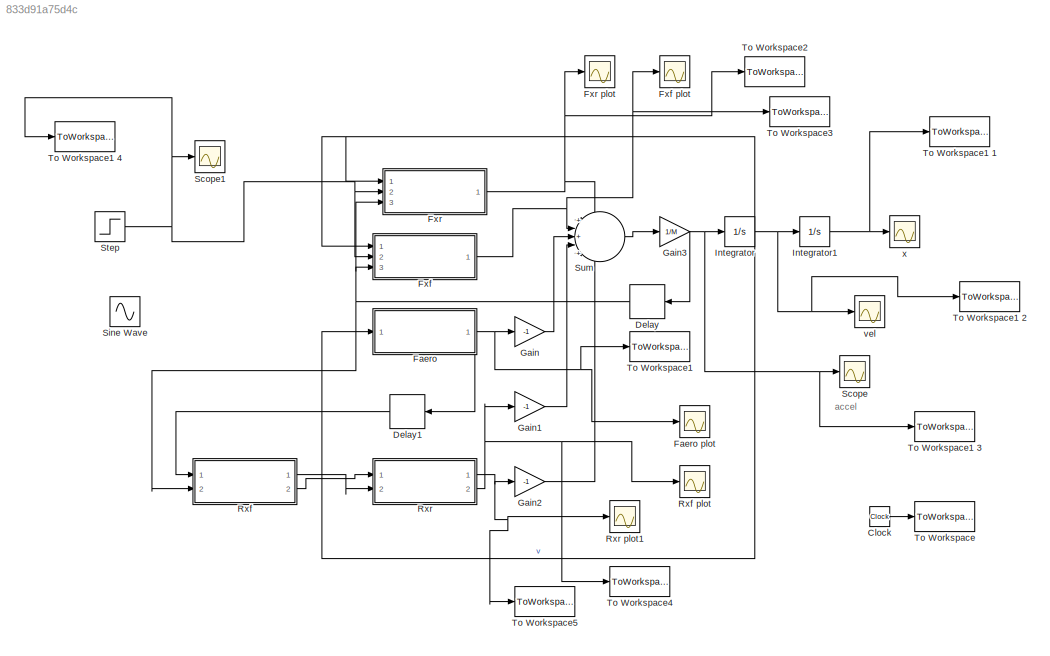
MODEL slx_833d91a75d4c
KIND model
CONFIG AbsTol = auto
CONFIG EnableMultiTasking = off
CONFIG FixedStep = 1e-2
CONFIG MaxStep = auto
CONFIG MinStep = auto
CONFIG RelTol = 1e-3
CONFIG SampleTimeConstraint = Unconstrained
CONFIG SolverName = FixedStepAuto
CONFIG StartTime = 0
CONFIG StopTime = 11.0
BLOCK [Clock] Clock
BLOCK [Delay] Delay
  DelayLength = 1
  InitialCondition = 0
  InputPortMap = u0
  NameLocation = top
  Ports = [1, 1]
BLOCK [Delay] Delay1
  DelayLength = 1
  InitialCondition = 0
  InputPortMap = u0
  NameLocation = top
  Ports = [1, 1]
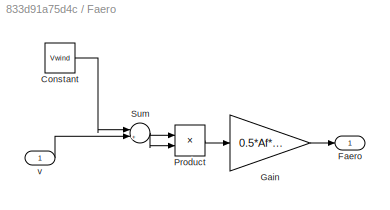
BLOCK [SubSystem] Faero
  Ports = [1, 1]
  RequestExecContextInheritance = off
BLOCK [Scope] Faero plot
  Floating = off
  NumInputPorts = 1
  Ports = [1]
  ScopeSpecificationString = Simulink.scopes.TimeScopeBlockCfg('CurrentConfiguration', extmgr.ConfigurationSet(extmgr.Configuration('Core','General UI',true),extmgr.Configuration('Core','Source UI',true),extmgr.Configuration('Sources','WiredSimulink',true,'DataLoggingVariableName','ScopeData2'),extmgr.Configuration('Visuals','Time Domain',true,'SerializedDisplays',{struct('MinYLimReal','-2454.48712','MaxYLimReal','22177.00903...<+1419ch>
BLOCK [Constant] Faero/Constant
  Value = Vwind
BLOCK [Outport] Faero/Faero
BLOCK [Gain] Faero/Gain
  Gain = 0.5*Af*rho*Cd
BLOCK [Product] Faero/Product
  Ports = [2, 1]
BLOCK [Sum] Faero/Sum
  Inputs = |++
  Ports = [2, 1]
BLOCK [Inport] Faero/v
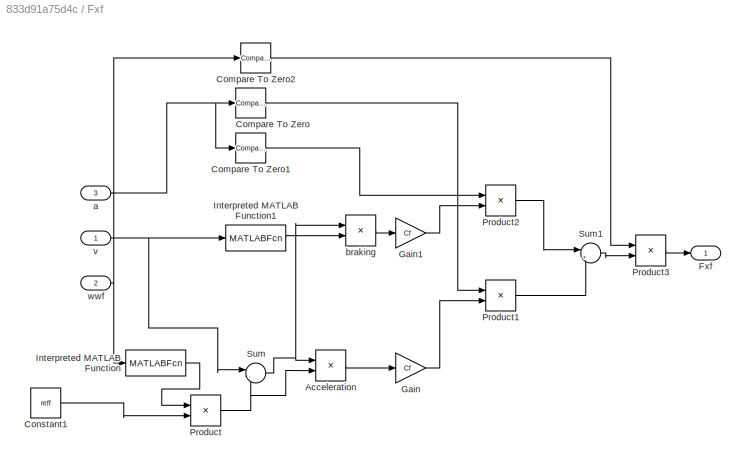
BLOCK [SubSystem] Fxf
  Ports = [3, 1]
  RequestExecContextInheritance = off
BLOCK [Scope] Fxf plot
  Floating = off
  NumInputPorts = 1
  Ports = [1]
  ScopeSpecificationString = Simulink.scopes.TimeScopeBlockCfg('CurrentConfiguration', extmgr.ConfigurationSet(extmgr.Configuration('Core','General UI',true),extmgr.Configuration('Core','Source UI',true),extmgr.Configuration('Sources','WiredSimulink',true,'DataLoggingVariableName','ScopeData3'),extmgr.Configuration('Visuals','Time Domain',true,'SerializedDisplays',{struct('MinYLimReal','7294.20512','MaxYLimReal','43633.97721'...<+1417ch>
BLOCK [Product] Fxf/Acceleration
  Inputs = */
  OutMax = 0.1
  Ports = [2, 1]
BLOCK [Reference] Fxf/Compare To Zero  REF=simulink/Logic and Bit
Operations/Compare
To Zero
  Ports = [1, 1]
  SourceBlock = simulink/Logic and Bit\nOperations/Compare\nTo Zero
  SourceProductBaseCode = SL
  SourceType = Compare To Zero
BLOCK [Reference] Fxf/Compare To Zero1  REF=simulink/Logic and Bit
Operations/Compare
To Zero
  Ports = [1, 1]
  SourceBlock = simulink/Logic and Bit\nOperations/Compare\nTo Zero
  SourceProductBaseCode = SL
  SourceType = Compare To Zero
BLOCK [Reference] Fxf/Compare To Zero2  REF=simulink/Logic and Bit
Operations/Compare
To Zero
  Ports = [1, 1]
  SourceBlock = simulink/Logic and Bit\nOperations/Compare\nTo Zero
  SourceProductBaseCode = SL
  SourceType = Compare To Zero
BLOCK [Constant] Fxf/Constant1
  Value = reff
BLOCK [Outport] Fxf/Fxf
BLOCK [Gain] Fxf/Gain
  Gain = Cf
BLOCK [Gain] Fxf/Gain1
  Gain = Cf
BLOCK [MATLABFcn] Fxf/Interpreted MATLAB Function
  MATLABFcn = u+(u==0)*0.01
  Ports = [1, 1]
BLOCK [MATLABFcn] Fxf/Interpreted MATLAB Function1
  MATLABFcn = u+(u==0)*0.01
  Ports = [1, 1]
BLOCK [Product] Fxf/Product
  OutMin = 0.0001
  Ports = [2, 1]
BLOCK [Product] Fxf/Product1
  Ports = [2, 1]
BLOCK [Product] Fxf/Product2
  Ports = [2, 1]
BLOCK [Product] Fxf/Product3
  Ports = [2, 1]
BLOCK [Sum] Fxf/Sum
  Inputs = |-+
  Ports = [2, 1]
BLOCK [Sum] Fxf/Sum1
  Inputs = |++
  Ports = [2, 1]
BLOCK [Inport] Fxf/a
  Port = 3
BLOCK [Product] Fxf/braking
  Inputs = */
  Ports = [2, 1]
BLOCK [Inport] Fxf/v
BLOCK [Inport] Fxf/wwf
  Port = 2
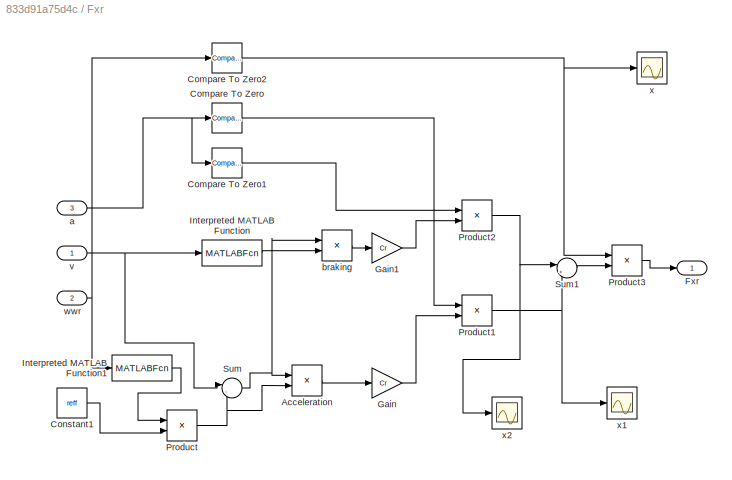
BLOCK [SubSystem] Fxr
  Ports = [3, 1]
  RequestExecContextInheritance = off
BLOCK [Scope] Fxr plot
  Floating = off
  NumInputPorts = 1
  Ports = [1]
  ScopeSpecificationString = Simulink.scopes.TimeScopeBlockCfg('CurrentConfiguration', extmgr.ConfigurationSet(extmgr.Configuration('Core','General UI',true),extmgr.Configuration('Core','Source UI',true),extmgr.Configuration('Sources','WiredSimulink',true,'DataLoggingVariableName','ScopeData4'),extmgr.Configuration('Visuals','Time Domain',true,'SerializedDisplays',{struct('MinYLimReal','-4994.35732','MaxYLimReal','44949.21588...<+1417ch>
BLOCK [Product] Fxr/Acceleration
  Inputs = */
  Ports = [2, 1]
BLOCK [Reference] Fxr/Compare To Zero  REF=simulink/Logic and Bit
Operations/Compare
To Zero
  Ports = [1, 1]
  SourceBlock = simulink/Logic and Bit\nOperations/Compare\nTo Zero
  SourceProductBaseCode = SL
  SourceType = Compare To Zero
BLOCK [Reference] Fxr/Compare To Zero1  REF=simulink/Logic and Bit
Operations/Compare
To Zero
  Ports = [1, 1]
  SourceBlock = simulink/Logic and Bit\nOperations/Compare\nTo Zero
  SourceProductBaseCode = SL
  SourceType = Compare To Zero
BLOCK [Reference] Fxr/Compare To Zero2  REF=simulink/Logic and Bit
Operations/Compare
To Zero
  Ports = [1, 1]
  SourceBlock = simulink/Logic and Bit\nOperations/Compare\nTo Zero
  SourceProductBaseCode = SL
  SourceType = Compare To Zero
BLOCK [Constant] Fxr/Constant1
  Value = reff
BLOCK [Outport] Fxr/Fxr
BLOCK [Gain] Fxr/Gain
  Gain = Cr
BLOCK [Gain] Fxr/Gain1
  Gain = Cr
BLOCK [MATLABFcn] Fxr/Interpreted MATLAB Function
  MATLABFcn = u+(u==0)*0.01
  Ports = [1, 1]
BLOCK [MATLABFcn] Fxr/Interpreted MATLAB Function1
  MATLABFcn = u+(u==0)*0.01
  Ports = [1, 1]
BLOCK [Product] Fxr/Product
  Ports = [2, 1]
BLOCK [Product] Fxr/Product1
  Ports = [2, 1]
BLOCK [Product] Fxr/Product2
  Ports = [2, 1]
BLOCK [Product] Fxr/Product3
  Ports = [2, 1]
BLOCK [Sum] Fxr/Sum
  Inputs = |-+
  Ports = [2, 1]
BLOCK [Sum] Fxr/Sum1
  Inputs = |++
  Ports = [2, 1]
BLOCK [Inport] Fxr/a
  Port = 3
BLOCK [Product] Fxr/braking
  Inputs = */
  Ports = [2, 1]
BLOCK [Inport] Fxr/v
BLOCK [Inport] Fxr/wwr
  Port = 2
BLOCK [Scope] Fxr/x
  Floating = off
  NumInputPorts = 1
  Ports = [1]
  ScopeSpecificationString = Simulink.scopes.TimeScopeBlockCfg('CurrentConfiguration', extmgr.ConfigurationSet(extmgr.Configuration('Core','General UI',true),extmgr.Configuration('Core','Source UI',true),extmgr.Configuration('Sources','WiredSimulink',true,'DataLoggingVariableName','ScopeData7'),extmgr.Configuration('Visuals','Time Domain',true,'SerializedDisplays',{struct('MinYLimReal','0.9','MaxYLimReal','1.1','YLabelReal','...<+1376ch>
BLOCK [Scope] Fxr/x1
  Floating = off
  NumInputPorts = 1
  Ports = [1]
  ScopeSpecificationString = Simulink.scopes.TimeScopeBlockCfg('CurrentConfiguration', extmgr.ConfigurationSet(extmgr.Configuration('Core','General UI',true),extmgr.Configuration('Core','Source UI',true),extmgr.Configuration('Sources','WiredSimulink',true,'DataLoggingVariableName','ScopeData8'),extmgr.Configuration('Visuals','Time Domain',true,'SerializedDisplays',{struct('MinYLimReal','-4994.35732','MaxYLimReal','44949.21588...<+1393ch>
BLOCK [Scope] Fxr/x2
  Floating = off
  NumInputPorts = 1
  Ports = [1]
  ScopeSpecificationString = Simulink.scopes.TimeScopeBlockCfg('CurrentConfiguration', extmgr.ConfigurationSet(extmgr.Configuration('Core','General UI',true),extmgr.Configuration('Core','Source UI',true),extmgr.Configuration('Sources','WiredSimulink',true,'DataLoggingVariableName','ScopeData9'),extmgr.Configuration('Visuals','Time Domain',true,'SerializedDisplays',{struct('MinYLimReal','-1.00000','MaxYLimReal','1.00000','YLab...<+1367ch>
BLOCK [Gain] Gain
  Gain = -1
BLOCK [Gain] Gain1
  Gain = -1
BLOCK [Gain] Gain2
  Gain = -1
BLOCK [Gain] Gain3
  Gain = 1/M
BLOCK [Integrator] Integrator
  Ports = [1, 1]
BLOCK [Integrator] Integrator1
  InitialCondition = -2
  Ports = [1, 1]
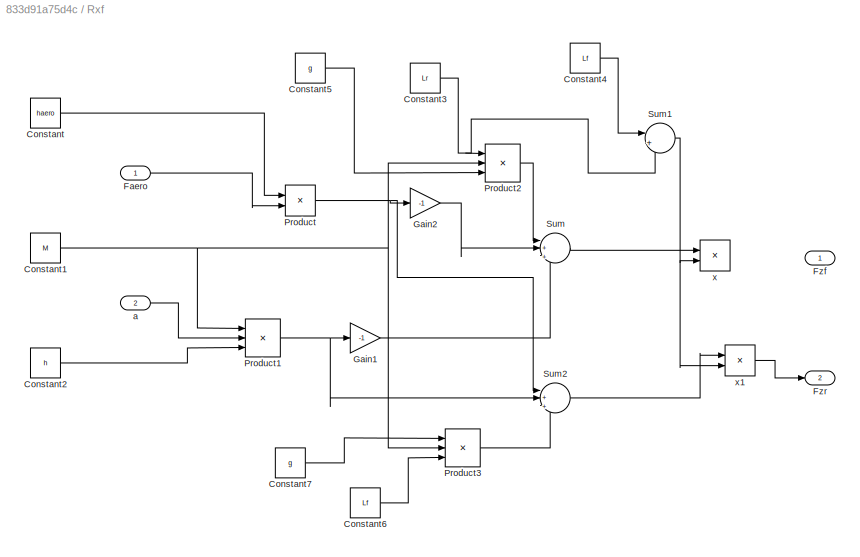
BLOCK [SubSystem] Rxf
  Ports = [2, 2]
  RequestExecContextInheritance = off
BLOCK [Scope] Rxf plot
  Floating = off
  NumInputPorts = 1
  Ports = [1]
  ScopeSpecificationString = Simulink.scopes.TimeScopeBlockCfg('CurrentConfiguration', extmgr.ConfigurationSet(extmgr.Configuration('Core','General UI',true),extmgr.Configuration('Core','Source UI',true),extmgr.Configuration('Sources','WiredSimulink',true,'DataLoggingVariableName','ScopeData1'),extmgr.Configuration('Visuals','Time Domain',true,'SerializedDisplays',{struct('MinYLimReal','8.12112','MaxYLimReal','333.21965','YLa...<+1434ch>
BLOCK [Constant] Rxf/Constant
  Value = haero
BLOCK [Constant] Rxf/Constant1
  Value = M
BLOCK [Constant] Rxf/Constant2
  Value = h
BLOCK [Constant] Rxf/Constant3
  Value = Lr
BLOCK [Constant] Rxf/Constant4
  Value = Lf
BLOCK [Constant] Rxf/Constant5
  Value = g
BLOCK [Constant] Rxf/Constant6
  Value = Lf
BLOCK [Constant] Rxf/Constant7
  Value = g
BLOCK [Inport] Rxf/Faero
BLOCK [Outport] Rxf/Fzf
BLOCK [Outport] Rxf/Fzr
  Port = 2
BLOCK [Gain] Rxf/Gain1
  Gain = -1
BLOCK [Gain] Rxf/Gain2
  Gain = -1
BLOCK [Product] Rxf/Product
  Ports = [2, 1]
BLOCK [Product] Rxf/Product1
  Inputs = 3
  Ports = [3, 1]
BLOCK [Product] Rxf/Product2
  Inputs = 3
  Ports = [3, 1]
BLOCK [Product] Rxf/Product3
  Inputs = 3
  Ports = [3, 1]
BLOCK [Sum] Rxf/Sum
  Inputs = |+|+|+
  Ports = [3, 1]
BLOCK [Sum] Rxf/Sum1
  Inputs = |+|+
  Ports = [2, 1]
BLOCK [Sum] Rxf/Sum2
  Inputs = |+|+|+
  Ports = [3, 1]
BLOCK [Inport] Rxf/a
  Port = 2
BLOCK [Product] Rxf/x
  Inputs = */
  Ports = [2, 1]
BLOCK [Product] Rxf/x1
  Inputs = */
  Ports = [2, 1]
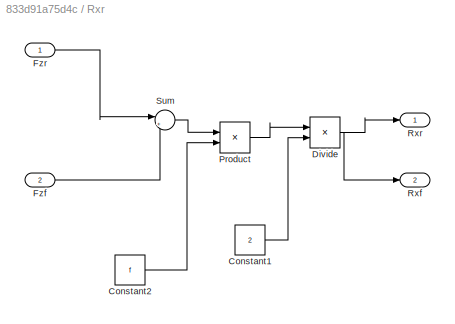
BLOCK [SubSystem] Rxr
  Ports = [2, 2]
  RequestExecContextInheritance = off
BLOCK [Scope] Rxr plot1
  Floating = off
  NumInputPorts = 1
  Ports = [1]
  ScopeSpecificationString = Simulink.scopes.TimeScopeBlockCfg('CurrentConfiguration', extmgr.ConfigurationSet(extmgr.Configuration('Core','General UI',true),extmgr.Configuration('Core','Source UI',true),extmgr.Configuration('Sources','WiredSimulink',true,'DataLoggingVariableName','ScopeData5'),extmgr.Configuration('Visuals','Time Domain',true,'SerializedDisplays',{struct('MinYLimReal','8.12112','MaxYLimReal','333.21965','YLa...<+1399ch>
BLOCK [Constant] Rxr/Constant1
  Value = 2
BLOCK [Constant] Rxr/Constant2
  Value = f
BLOCK [Product] Rxr/Divide
  Inputs = */
  Ports = [2, 1]
BLOCK [Inport] Rxr/Fzf
  Port = 2
BLOCK [Inport] Rxr/Fzr
BLOCK [Product] Rxr/Product
  Ports = [2, 1]
BLOCK [Outport] Rxr/Rxf
  Port = 2
BLOCK [Outport] Rxr/Rxr
BLOCK [Sum] Rxr/Sum
  Inputs = |++
  Ports = [2, 1]
BLOCK [Scope] Scope
  Floating = off
  NumInputPorts = 1
  Ports = [1]
  ScopeSpecificationString = Simulink.scopes.TimeScopeBlockCfg('CurrentConfiguration', extmgr.ConfigurationSet(extmgr.Configuration('Core','General UI',true),extmgr.Configuration('Core','Source UI',true),extmgr.Configuration('Sources','WiredSimulink',true,'DataLoggingVariableName','ScopeData3'),extmgr.Configuration('Visuals','Time Domain',true,'SerializedDisplays',{struct('MinYLimReal','-7.78493','MaxYLimReal','89.26225','YLa...<+1397ch>
BLOCK [Scope] Scope1
  Floating = off
  NumInputPorts = 1
  Ports = [1]
  ScopeSpecificationString = Simulink.scopes.TimeScopeBlockCfg('CurrentConfiguration', extmgr.ConfigurationSet(extmgr.Configuration('Core','General UI',true),extmgr.Configuration('Core','Source UI',true),extmgr.Configuration('Sources','WiredSimulink',true,'DataLoggingVariableName','ScopeData6'),extmgr.Configuration('Visuals','Time Domain',true,'SerializedDisplays',{struct('MinYLimReal','900.00000','MaxYLimReal','1100.00000','...<+1445ch>
BLOCK [Sin] Sine Wave
  Amplitude = 25
  Bias = 26
  Frequency = 0.5
  Ports = [0, 1]
  SampleTime = 0
BLOCK [Step] Step
  After = w_cte
  SampleTime = 0
  Time = 0
BLOCK [Sum] Sum
  Inputs = +|+|+|+|+
  Ports = [5, 1]
BLOCK [ToWorkspace] To Workspace
  FixptAsFi = on
  MaxDataPoints = inf
  Ports = [1]
  SampleTime = -1
  VariableName = t
BLOCK [ToWorkspace] To Workspace1
  FixptAsFi = on
  MaxDataPoints = inf
  Ports = [1]
  SampleTime = -1
  VariableName = faero
BLOCK [ToWorkspace] To Workspace1 1
  FixptAsFi = on
  MaxDataPoints = inf
  Ports = [1]
  SampleTime = -1
  VariableName = x
BLOCK [ToWorkspace] To Workspace1 2
  FixptAsFi = on
  MaxDataPoints = inf
  Ports = [1]
  SampleTime = -1
  VariableName = v
BLOCK [ToWorkspace] To Workspace1 3
  FixptAsFi = on
  MaxDataPoints = inf
  Ports = [1]
  SampleTime = -1
  VariableName = a
BLOCK [ToWorkspace] To Workspace1 4
  FixptAsFi = on
  MaxDataPoints = inf
  Ports = [1]
  SampleTime = -1
  VariableName = u
BLOCK [ToWorkspace] To Workspace2
  FixptAsFi = on
  MaxDataPoints = inf
  Ports = [1]
  SampleTime = -1
  VariableName = fxr
BLOCK [ToWorkspace] To Workspace3
  FixptAsFi = on
  MaxDataPoints = inf
  Ports = [1]
  SampleTime = -1
  VariableName = fxf
BLOCK [ToWorkspace] To Workspace4
  FixptAsFi = on
  MaxDataPoints = inf
  Ports = [1]
  SampleTime = -1
  VariableName = rxf
BLOCK [ToWorkspace] To Workspace5
  FixptAsFi = on
  MaxDataPoints = inf
  Ports = [1]
  SampleTime = -1
  VariableName = rxr
BLOCK [Scope] vel
  Floating = off
  NumInputPorts = 1
  Ports = [1]
  ScopeSpecificationString = Simulink.scopes.TimeScopeBlockCfg('CurrentConfiguration', extmgr.ConfigurationSet(extmgr.Configuration('Core','General UI',true),extmgr.Configuration('Core','Source UI',true),extmgr.Configuration('Sources','WiredSimulink',true,'DataLoggingVariableName','ScopeData2'),extmgr.Configuration('Visuals','Time Domain',true,'SerializedDisplays',{struct('MinYLimReal','-32.10973','MaxYLimReal','288.98754','Y...<+1399ch>
BLOCK [Scope] x
  Floating = off
  NumInputPorts = 1
  Ports = [1]
  ScopeSpecificationString = Simulink.scopes.TimeScopeBlockCfg('CurrentConfiguration', extmgr.ConfigurationSet(extmgr.Configuration('Core','General UI',true),extmgr.Configuration('Core','Source UI',true),extmgr.Configuration('Sources','WiredSimulink',true),extmgr.Configuration('Visuals','Time Domain',true,'SerializedDisplays',{struct('MinYLimReal','-267.1927','MaxYLimReal','2384.73431','YLabelReal','','MinYLimMag',' 0.00000',...<+1347ch>
ANNOTATION (root): accel
LINE Clock:1 -> To Workspace:1
LINE Delay1:1 -> Rxf:1
NET Delay:1 -> Fxf:3, Fxr:3, Rxf:2
LINE Faero/Constant:1 -> Faero/Sum:1
LINE Faero/Gain:1 -> Faero/Faero:1
LINE Faero/Product:1 -> Faero/Gain:1
NET Faero/Sum:1 -> Faero/Product:1, Faero/Product:2
LINE Faero/v:1 -> Faero/Sum:2
NET Faero:1 -> Delay1:1, Faero plot:1, Gain:1, To Workspace1:1
LINE Fxf/Acceleration:1 -> Fxf/Gain:1
LINE Fxf/Compare To Zero1:1 -> Fxf/Product2:1
LINE Fxf/Compare To Zero2:1 -> Fxf/Product3:1
LINE Fxf/Compare To Zero:1 -> Fxf/Product1:1
LINE Fxf/Constant1:1 -> Fxf/Product:2
LINE Fxf/Gain1:1 -> Fxf/Product2:2
LINE Fxf/Gain:1 -> Fxf/Product1:2
LINE Fxf/Interpreted MATLAB Function1:1 -> Fxf/braking:2
LINE Fxf/Interpreted MATLAB Function:1 -> Fxf/Product:1
LINE Fxf/Product1:1 -> Fxf/Sum1:2
LINE Fxf/Product2:1 -> Fxf/Sum1:1
LINE Fxf/Product3:1 -> Fxf/Fxf:1
NET Fxf/Product:1 -> Fxf/Acceleration:2, Fxf/Sum:2
LINE Fxf/Sum1:1 -> Fxf/Product3:2
NET Fxf/Sum:1 -> Fxf/Acceleration:1, Fxf/braking:1
NET Fxf/a:1 -> Fxf/Compare To Zero1:1, Fxf/Compare To Zero:1
LINE Fxf/braking:1 -> Fxf/Gain1:1
NET Fxf/v:1 -> Fxf/Interpreted MATLAB Function1:1, Fxf/Sum:1
NET Fxf/wwf:1 -> Fxf/Compare To Zero2:1, Fxf/Interpreted MATLAB Function:1
NET Fxf:1 -> Fxf plot:1, Sum:2, To Workspace3:1
LINE Fxr/Acceleration:1 -> Fxr/Gain:1
LINE Fxr/Compare To Zero1:1 -> Fxr/Product2:1
NET Fxr/Compare To Zero2:1 -> Fxr/Product3:1, Fxr/x:1
LINE Fxr/Compare To Zero:1 -> Fxr/Product1:1
LINE Fxr/Constant1:1 -> Fxr/Product:2
LINE Fxr/Gain1:1 -> Fxr/Product2:2
LINE Fxr/Gain:1 -> Fxr/Product1:2
LINE Fxr/Interpreted MATLAB Function1:1 -> Fxr/Product:1
LINE Fxr/Interpreted MATLAB Function:1 -> Fxr/braking:2
NET Fxr/Product1:1 -> Fxr/Sum1:2, Fxr/x1:1
NET Fxr/Product2:1 -> Fxr/Sum1:1, Fxr/x2:1
LINE Fxr/Product3:1 -> Fxr/Fxr:1
NET Fxr/Product:1 -> Fxr/Acceleration:2, Fxr/Sum:2
LINE Fxr/Sum1:1 -> Fxr/Product3:2
NET Fxr/Sum:1 -> Fxr/Acceleration:1, Fxr/braking:1
NET Fxr/a:1 -> Fxr/Compare To Zero1:1, Fxr/Compare To Zero:1
LINE Fxr/braking:1 -> Fxr/Gain1:1
NET Fxr/v:1 -> Fxr/Interpreted MATLAB Function:1, Fxr/Sum:1
NET Fxr/wwr:1 -> Fxr/Compare To Zero2:1, Fxr/Interpreted MATLAB Function1:1
NET Fxr:1 -> Fxr plot:1, Sum:1, To Workspace2:1
LINE Gain1:1 -> Sum:4
LINE Gain2:1 -> Sum:5
NET Gain3:1 -> Delay:1, Integrator:1, Scope:1, To Workspace1 3:1
LINE Gain:1 -> Sum:3
NET Integrator1:1 -> To Workspace1 1:1, x:1
NET Integrator:1 -> Faero:1, Fxf:1, Fxr:1, Integrator1:1, To Workspace1 2:1, vel:1
NET Rxf/Constant1:1 -> Rxf/Product1:1, Rxf/Product2:2, Rxf/Product3:2
LINE Rxf/Constant2:1 -> Rxf/Product1:3
NET Rxf/Constant3:1 -> Rxf/Product2:1, Rxf/Sum1:2
LINE Rxf/Constant4:1 -> Rxf/Sum1:1
LINE Rxf/Constant5:1 -> Rxf/Product2:3
LINE Rxf/Constant6:1 -> Rxf/Product3:3
LINE Rxf/Constant7:1 -> Rxf/Product3:1
LINE Rxf/Constant:1 -> Rxf/Product:1
LINE Rxf/Faero:1 -> Rxf/Product:2
LINE Rxf/Gain1:1 -> Rxf/Sum:3
LINE Rxf/Gain2:1 -> Rxf/Sum:2
NET Rxf/Product1:1 -> Rxf/Gain1:1, Rxf/Sum2:2
LINE Rxf/Product2:1 -> Rxf/Sum:1
LINE Rxf/Product3:1 -> Rxf/Sum2:3
NET Rxf/Product:1 -> Rxf/Gain2:1, Rxf/Sum2:1
NET Rxf/Sum1:1 -> Rxf/x1:2, Rxf/x:2
LINE Rxf/Sum2:1 -> Rxf/x1:1
LINE Rxf/Sum:1 -> Rxf/x:1
LINE Rxf/a:1 -> Rxf/Product1:2
LINE Rxf/x1:1 -> Rxf/Fzr:1
LINE Rxf:1 -> Rxr:2
LINE Rxf:2 -> Rxr:1
LINE Rxr/Constant1:1 -> Rxr/Divide:2
LINE Rxr/Constant2:1 -> Rxr/Product:2
NET Rxr/Divide:1 -> Rxr/Rxf:1, Rxr/Rxr:1
LINE Rxr/Fzf:1 -> Rxr/Sum:2
LINE Rxr/Fzr:1 -> Rxr/Sum:1
LINE Rxr/Product:1 -> Rxr/Divide:1
LINE Rxr/Sum:1 -> Rxr/Product:1
NET Rxr:1 -> Gain2:1, Rxr plot1:1, To Workspace5:1
NET Rxr:2 -> Gain1:1, Rxf plot:1, To Workspace4:1
NET Step:1 -> Fxf:2, Fxr:2, Scope1:1, To Workspace1 4:1
LINE Sum:1 -> Gain3:1
note: NET lines group one-source signal fan-out (src -> all destinations, sorted); 1:1 wires keep LINE
